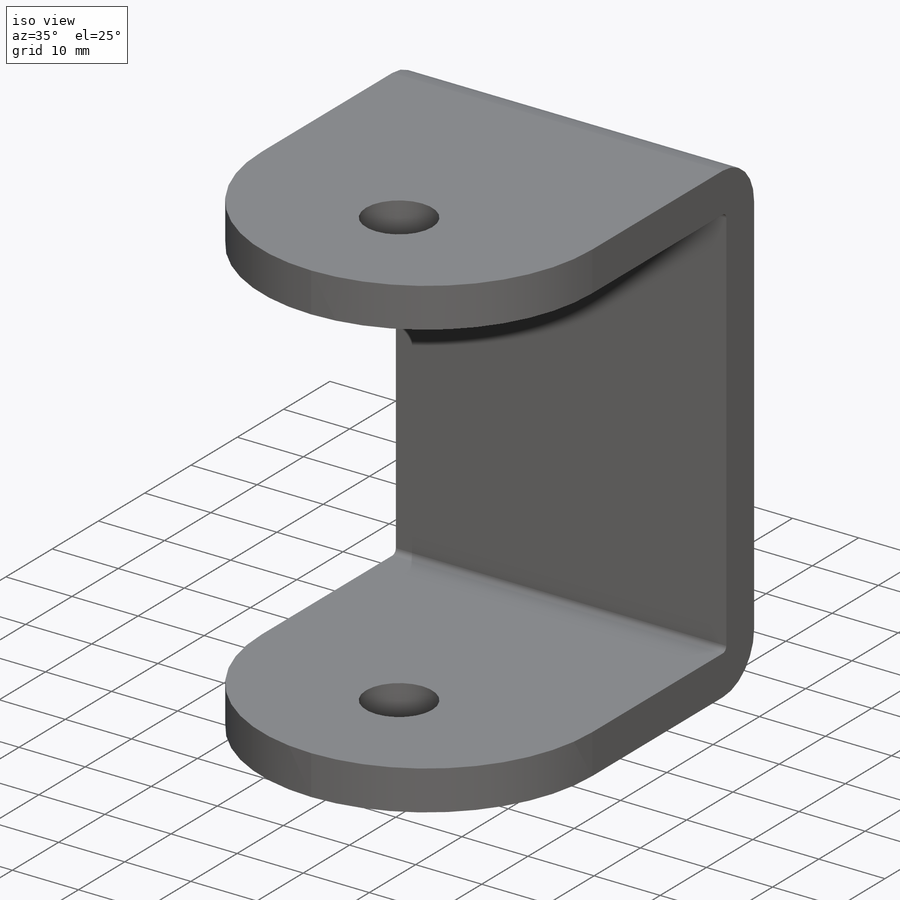
[diagram: iso view]
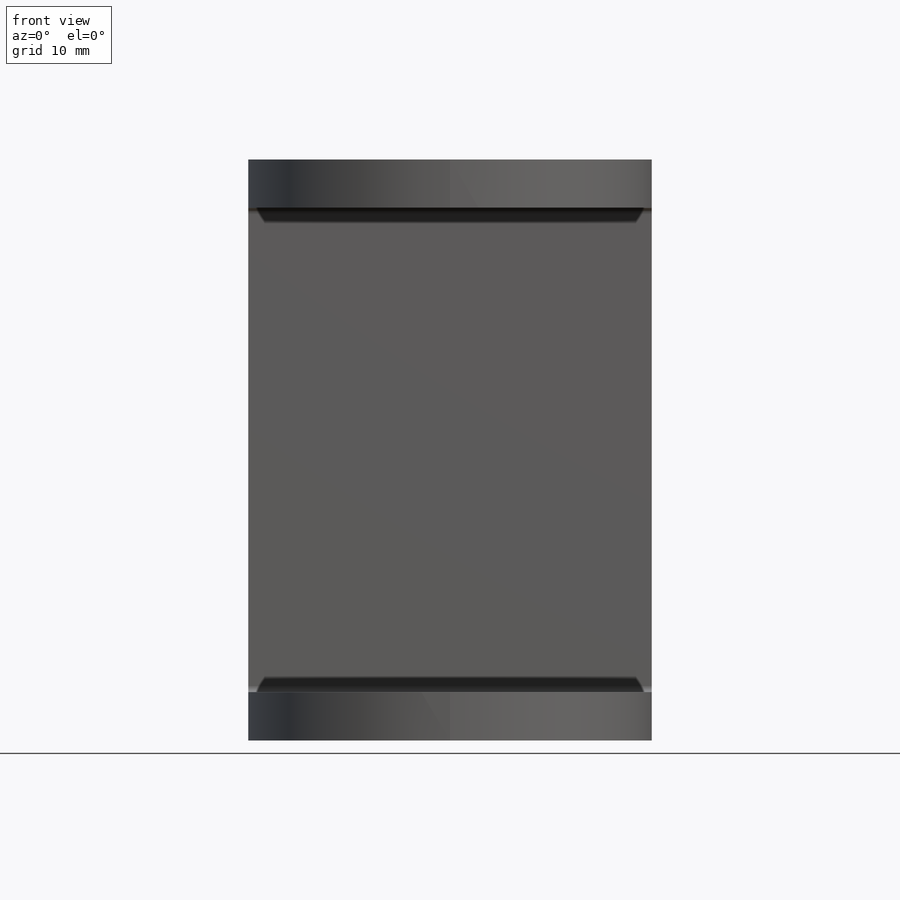
[diagram: front view]
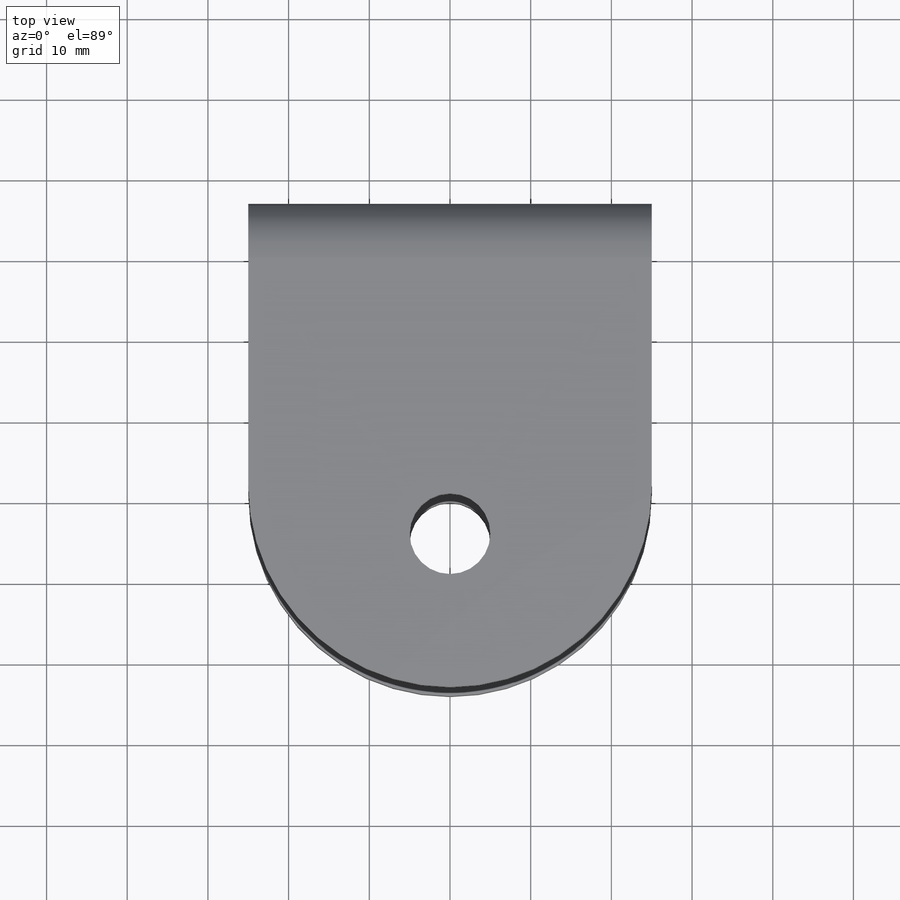
[diagram: top view]
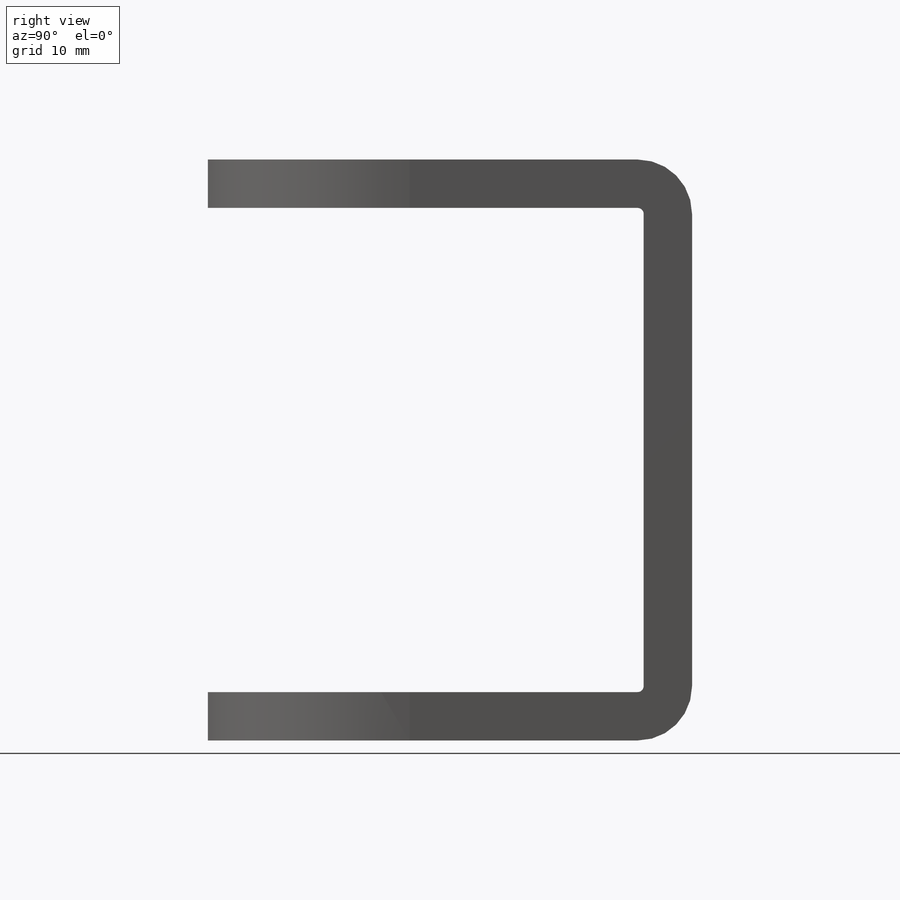
[diagram: right view]
SOLIDWORKS PART (.sldprt)
format: sldprt  version: not decoded by parser v0  size: 233,472 bytes
history: native  units: mm
features: sketch x6, sheet_metal_op x3, fillet x2, material x1, hole x1 + 1 further entry (+16 scaffold rows collapsed; 1 parser-record rows omitted)
feature tree (31):
  scaffold x16  (default folders/planes/origin — collapsed)
  material  "201 Annealed Stainless Steel (SS)"
  sketch  "Sketch2"  dims[c1.D1=~101.233512mm c2.D1=60.0mm c2.D2=50.0mm c2.D3=30.0mm c2.D4=25.0mm]
  sheet_metal_op  "Sheet-Metal1"  Thickness=6mm
  sheet_metal_op  "Base-Flange1"
  sketch  "Sketch8"
  sketch  "Sketch9"  dims[D1=0.7366mm D4=90.0deg D5=1.0 D8=3.0mm D9=3.0mm]
  sheet_metal_op  "EdgeBend2"
  fillet  "Fillet1"  Radius=25mm
  hole  "Ø10.0 (10) Diameter Hole1"  Diameter=10mm Depth=72mm
  sketch  "Sketch13"  dims[D1=0.0mm D2=35.0mm]
  sketch  "Sketch14"  dims[hole-wizard template sketch: 60 standard entries collapsed; hole parameters kept: c18.Thru Hole Depth=72.0mm]
  "Flat-Pattern1"
  sketch  "Bend-Lines1"
  parser-record x1  (decoder bookkeeping rows leaked as tree rows — omitted from the tree; the rows remain in map.json)
  fillet  "Flatten-<EdgeBend2>1"  [1 undecoded]
decode coverage: 7 of 12 modeling features carry decoded parameters; 1 rows unclassified (native names shown)
note: ~ marks probable driven/reference dimensions
note: 1 parameter value undecoded
note: suppression state not decoded; provenance and decode notes live in map.json
